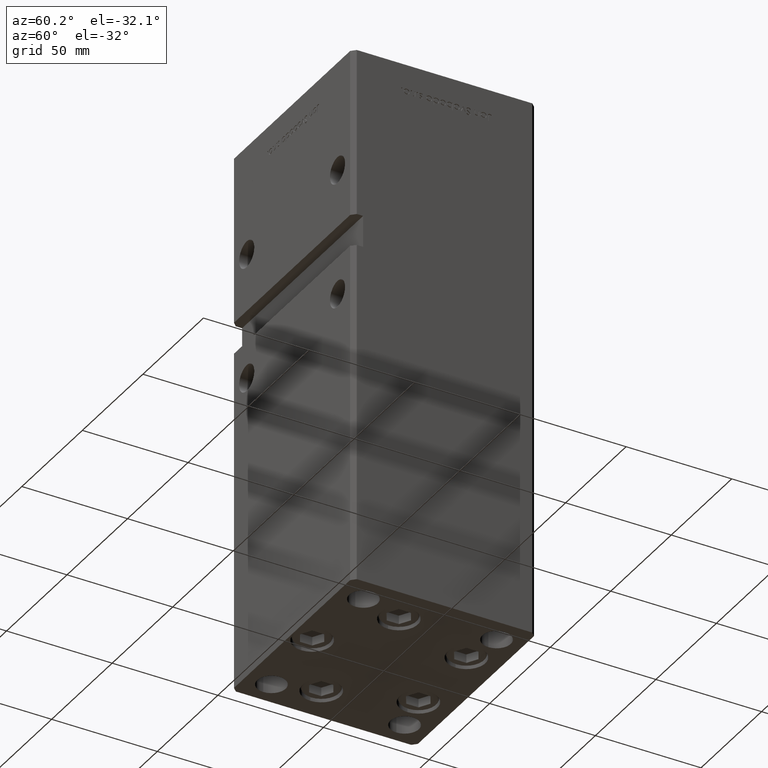
[diagram: clean part render]
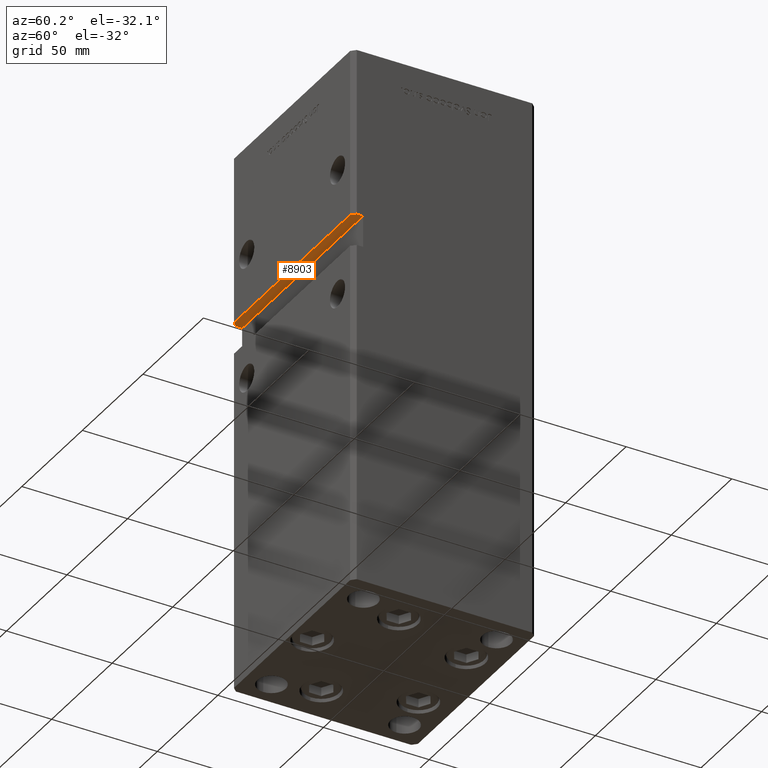
[diagram: same view with one face highlighted and labeled with its STEP entity id]
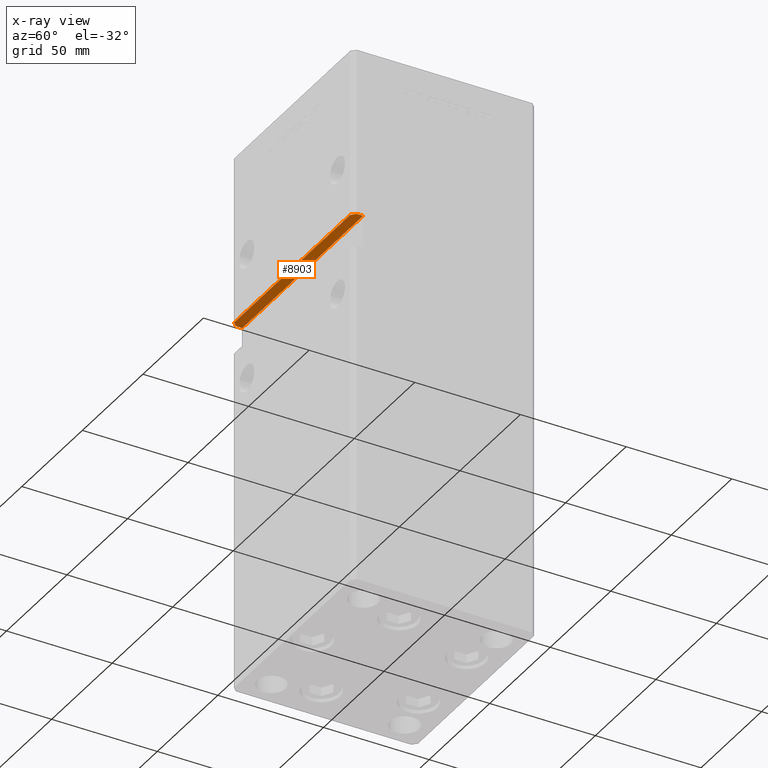
[diagram: x-ray of the same camera — body ghosted, the highlighted face saturated]
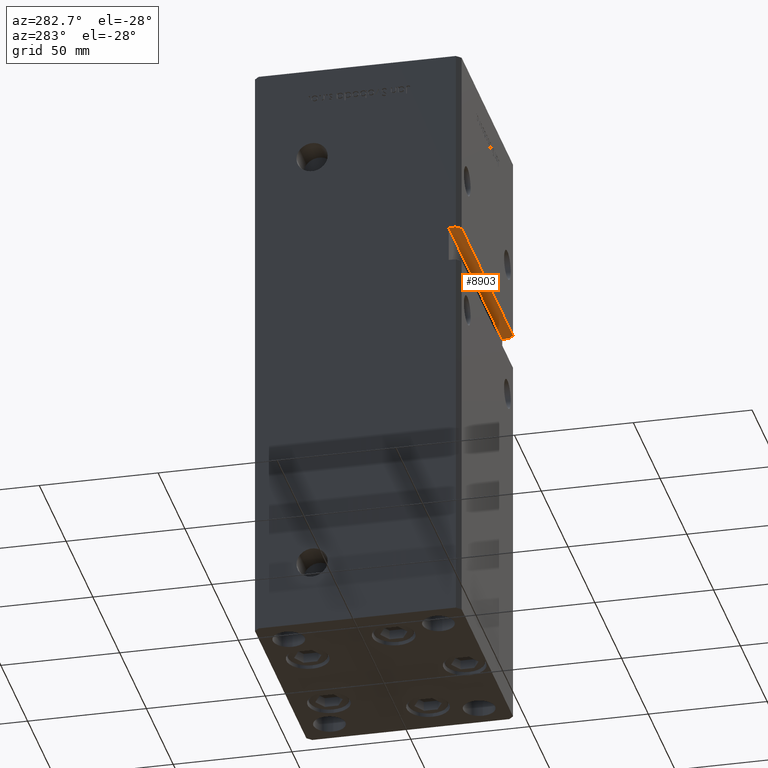
[diagram: same view with one face highlighted and labeled with its STEP entity id]
A machine part, auxiliary view. The second image highlights one B-rep face of the part: STEP entity #8903.
The next image is the same camera in x-ray: the body ghosted, the highlighted face saturated — about 0% of this face is hidden behind the body in this view.
A second angle (auxiliary view) of the same face is appended — the face is thin or edge-on in the first view.
In plain terms, the highlighted planar face has unit normal (0, 0, 1).
Its self-contained STEP definition (entity closure, byte-faithful):
#1372 = CARTESIAN_POINT ( 'NONE',  ( -47.99999999999998579, -43.50000000000000000, 158.0000000000000000 ) ) ;
#1562 = DIRECTION ( 'NONE',  ( 0.000000000000000000, 0.000000000000000000, 1.000000000000000000 ) ) ;
#1850 = CARTESIAN_POINT ( 'NONE',  ( -49.99999999999998579, -38.50000000000000000, 158.0000000000000000 ) ) ;
#2104 = DIRECTION ( 'NONE',  ( -0.7071067811865474617, -0.7071067811865474617, 0.000000000000000000 ) ) ;
#2588 = VECTOR ( 'NONE', #23503, 1000.000000000000000 ) ;
#3262 = VECTOR ( 'NONE', #18260, 1000.000000000000000 ) ;
#4484 = LINE ( 'NONE', #41087, #22065 ) ;
#6547 = VECTOR ( 'NONE', #21968, 1000.000000000000000 ) ;
#7253 = CARTESIAN_POINT ( 'NONE',  ( -49.99999999999998579, -41.49999999999999289, 158.0000000000000000 ) ) ;
#8903 = ADVANCED_FACE ( 'NONE', ( #50826 ), #34673, .F. ) ;
#9695 = DIRECTION ( 'NONE',  ( -1.000000000000000000, -0.000000000000000000, -0.000000000000000000 ) ) ;
#9903 = CARTESIAN_POINT ( 'NONE',  ( -49.99999999999998579, -38.50000000000000000, 158.0000000000000000 ) ) ;
#10180 = LINE ( 'NONE', #1850, #3262 ) ;
#11053 = EDGE_CURVE ( 'NONE', #13260, #23420, #50769, .T. ) ;
#12815 = CARTESIAN_POINT ( 'NONE',  ( 47.99999999999998579, -43.50000000000000000, 158.0000000000000000 ) ) ;
#13035 = EDGE_CURVE ( 'NONE', #23420, #14922, #4484, .T. ) ;
#13260 = VERTEX_POINT ( 'NONE', #14994 ) ;
#13464 = LINE ( 'NONE', #47112, #32223 ) ;
#14922 = VERTEX_POINT ( 'NONE', #1372 ) ;
#14994 = CARTESIAN_POINT ( 'NONE',  ( -49.99999999999998579, -38.50000000000000000, 158.0000000000000000 ) ) ;
#16260 = EDGE_CURVE ( 'NONE', #23178, #17363, #43017, .T. ) ;
#16325 = EDGE_CURVE ( 'NONE', #33136, #13260, #10180, .T. ) ;
#17363 = VERTEX_POINT ( 'NONE', #12815 ) ;
#17845 = ORIENTED_EDGE ( 'NONE', *, *, #16260, .T. ) ;
#18224 = ORIENTED_EDGE ( 'NONE', *, *, #13035, .F. ) ;
#18246 = DIRECTION ( 'NONE',  ( 1.000000000000000000, 0.000000000000000000, -0.000000000000000000 ) ) ;
#18260 = DIRECTION ( 'NONE',  ( -1.000000000000000000, -0.000000000000000000, -0.000000000000000000 ) ) ;
#21198 = EDGE_LOOP ( 'NONE', ( #41249, #29741, #52061, #17845, #22428, #18224 ) ) ;
#21968 = DIRECTION ( 'NONE',  ( -0.000000000000000000, -1.000000000000000000, -0.000000000000000000 ) ) ;
#22065 = VECTOR ( 'NONE', #29252, 1000.000000000000114 ) ;
#22428 = ORIENTED_EDGE ( 'NONE', *, *, #52901, .T. ) ;
#23178 = VERTEX_POINT ( 'NONE', #50364 ) ;
#23241 = CARTESIAN_POINT ( 'NONE',  ( 49.99999999999998579, -38.50000000000000000, 158.0000000000000000 ) ) ;
#23420 = VERTEX_POINT ( 'NONE', #7253 ) ;
#23503 = DIRECTION ( 'NONE',  ( -0.000000000000000000, -1.000000000000000000, -0.000000000000000000 ) ) ;
#27545 = LINE ( 'NONE', #23241, #2588 ) ;
#29252 = DIRECTION ( 'NONE',  ( 0.7071067811865474617, -0.7071067811865474617, 0.000000000000000000 ) ) ;
#29741 = ORIENTED_EDGE ( 'NONE', *, *, #16325, .F. ) ;
#32223 = VECTOR ( 'NONE', #9695, 1000.000000000000000 ) ;
#33136 = VERTEX_POINT ( 'NONE', #50718 ) ;
#33286 = EDGE_CURVE ( 'NONE', #33136, #23178, #27545, .T. ) ;
#33969 = AXIS2_PLACEMENT_3D ( 'NONE', #9903, #1562, #18246 ) ;
#34673 = PLANE ( 'NONE',  #33969 ) ;
#38979 = CARTESIAN_POINT ( 'NONE',  ( 49.99999999999998579, -41.49999999999999289, 158.0000000000000000 ) ) ;
#41087 = CARTESIAN_POINT ( 'NONE',  ( -49.99999999999998579, -41.49999999999999289, 158.0000000000000000 ) ) ;
#41249 = ORIENTED_EDGE ( 'NONE', *, *, #11053, .F. ) ;
#43017 = LINE ( 'NONE', #38979, #48823 ) ;
#47112 = CARTESIAN_POINT ( 'NONE',  ( -49.99999999999998579, -43.50000000000000000, 158.0000000000000000 ) ) ;
#48823 = VECTOR ( 'NONE', #2104, 1000.000000000000114 ) ;
#50364 = CARTESIAN_POINT ( 'NONE',  ( 49.99999999999998579, -41.49999999999999289, 158.0000000000000000 ) ) ;
#50718 = CARTESIAN_POINT ( 'NONE',  ( 49.99999999999998579, -38.50000000000000000, 158.0000000000000000 ) ) ;
#50769 = LINE ( 'NONE', #51037, #6547 ) ;
#50826 = FACE_OUTER_BOUND ( 'NONE', #21198, .T. ) ;
#51037 = CARTESIAN_POINT ( 'NONE',  ( -49.99999999999998579, -38.50000000000000000, 158.0000000000000000 ) ) ;
#52061 = ORIENTED_EDGE ( 'NONE', *, *, #33286, .T. ) ;
#52901 = EDGE_CURVE ( 'NONE', #17363, #14922, #13464, .T. ) ;